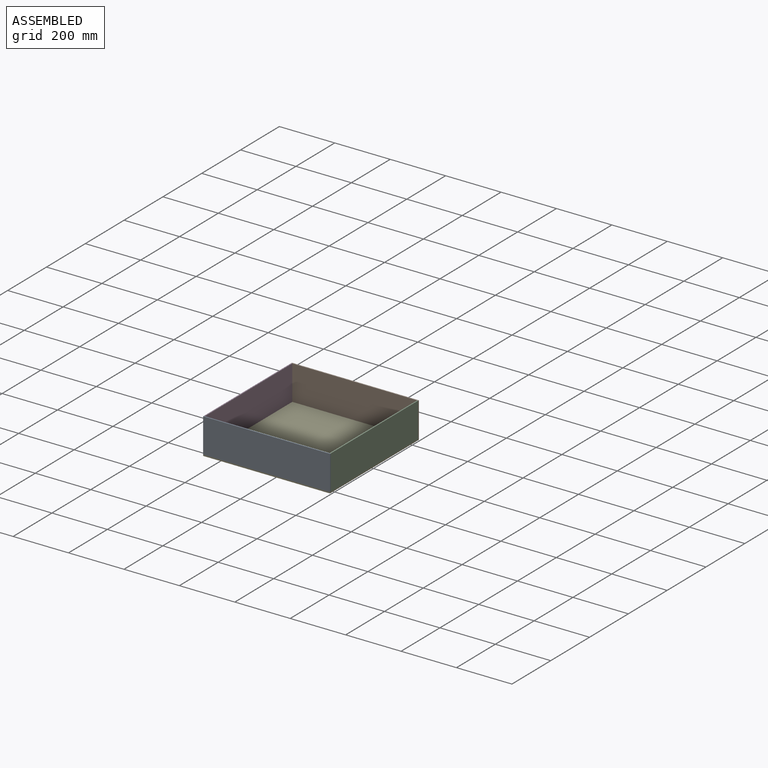
[diagram: assembled view]
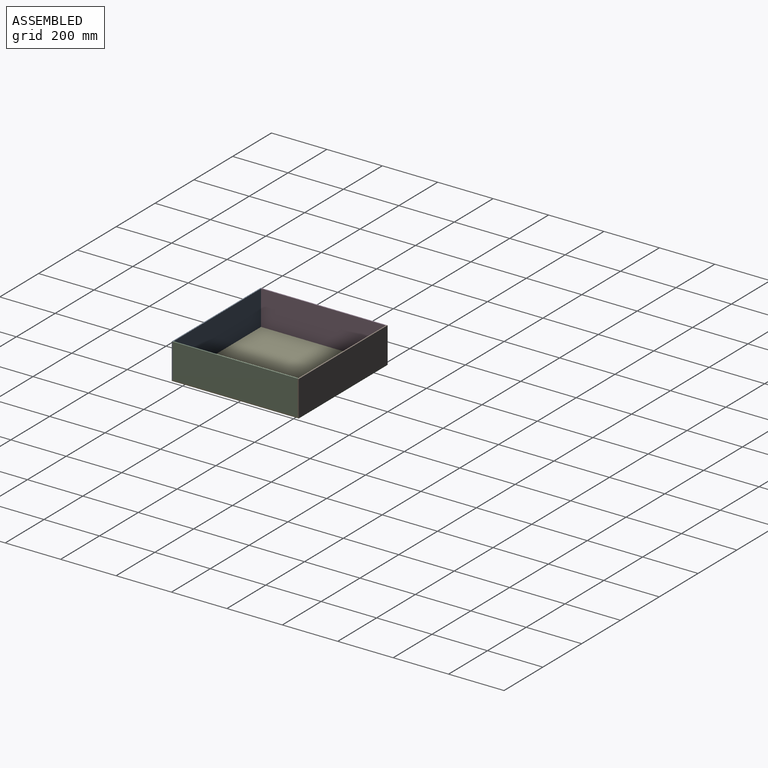
[diagram: assembled view, second angle]
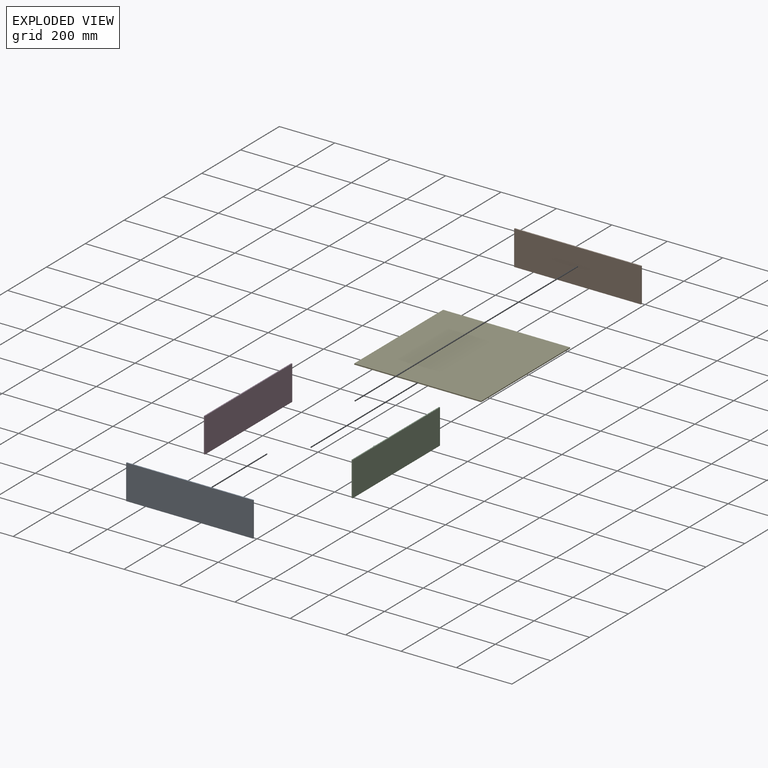
[diagram: exploded view]
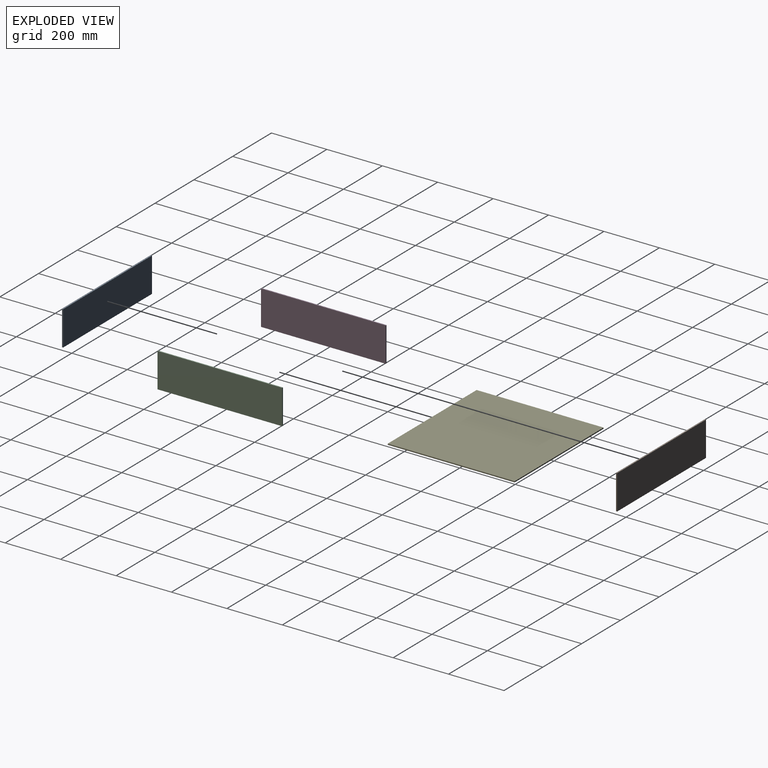
[diagram: exploded view, second angle]
ASSEMBLY  parts=5 mates=12
PART A: 6 faces, bbox 458x4x125 mm
  f0: plane 125x4mm, normal (-1,0,0), area 500mm2, adj f1,f3,f4,f5
  f1: plane 458x4mm, normal (0,0,-1), area 1832mm2, adj f0,f2,f4,f5
  f2: plane 125x4mm, normal (1,0,0), area 500mm2, adj f1,f3,f4,f5
  f3: plane 458x4mm, normal (0,0,1), area 1832mm2, adj f0,f2,f4,f5
  f4: plane 458x125mm, normal (0,-1,0), area 57250mm2, adj f0,f1,f2,f3
  f5: plane 458x125mm, normal (0,1,0), area 57250mm2, adj f0,f1,f2,f3
PART B: same geometry as A
PART C: 6 faces, bbox 4x450x125 mm
  f0: plane 125x4mm, normal (0,-1,0), area 500mm2, adj f1,f3,f4,f5
  f1: plane 450x4mm, normal (0,0,-1), area 1800mm2, adj f0,f2,f4,f5
  f2: plane 125x4mm, normal (0,1,0), area 500mm2, adj f1,f3,f4,f5
  f3: plane 450x4mm, normal (0,0,1), area 1800mm2, adj f0,f2,f4,f5
  f4: plane 450x125mm, normal (1,0,0), area 56250mm2, adj f0,f1,f2,f3
  f5: plane 450x125mm, normal (-1,0,0), area 56250mm2, adj f0,f1,f2,f3
PART D: same geometry as C
PART E: 6 faces, bbox 458x458x4 mm
  f0: plane 458x4mm, normal (1,0,0), area 1832mm2, adj f1,f3,f4,f5
  f1: plane 458x4mm, normal (0,1,0), area 1832mm2, adj f0,f2,f4,f5
  f2: plane 458x4mm, normal (-1,0,0), area 1832mm2, adj f1,f3,f4,f5
  f3: plane 458x4mm, normal (0,-1,0), area 1832mm2, adj f0,f2,f4,f5
  f4: plane 458x458mm, normal (0,0,1), area 209764mm2, adj f0,f1,f2,f3
  f5: plane 458x458mm, normal (0,0,-1), area 209764mm2, adj f0,f1,f2,f3
PLACE A t=(-250.85,-230,-72.63)mm
PLACE B t=(-250.85,224,-72.63)mm
PLACE C t=(203.15,-230,-72.63)mm
PLACE D t=(-250.85,-230,-72.63)mm
PLACE E t=(-21.85,-5,-76.63)mm
MATE planar C.f4 <-> E.f0  axis (1,0,0) through (207.15,-5,-10.13)mm
MATE planar B.f0 <-> E.f2  axis (-1,0,0) through (-250.85,222,-10.13)mm
MATE planar A.f0 <-> E.f2  axis (-1,0,0) through (-250.85,-232,-10.13)mm
MATE planar C.f2 <-> B.f4  axis (0,1,0) through (205.15,220,-10.13)mm
MATE planar B.f5 <-> E.f1  axis (0,1,0) through (-21.85,224,-10.13)mm
MATE planar D.f2 <-> B.f4  axis (0,1,0) through (-248.85,220,-10.13)mm
MATE planar C.f1 <-> E.f4  axis (0,0,-1) through (205.15,-5,-72.63)mm
MATE planar D.f5 <-> E.f2  axis (-1,0,0) through (-250.85,-5,-10.13)mm
MATE planar A.f1 <-> E.f4  axis (0,0,-1) through (-21.85,-232,-72.63)mm
MATE planar B.f1 <-> E.f4  axis (0,0,-1) through (-21.85,222,-72.63)mm
MATE planar A.f4 <-> E.f3  axis (0,-1,0) through (-21.85,-234,-10.13)mm
MATE planar D.f1 <-> E.f4  axis (0,0,-1) through (-248.85,-5,-72.63)mm
